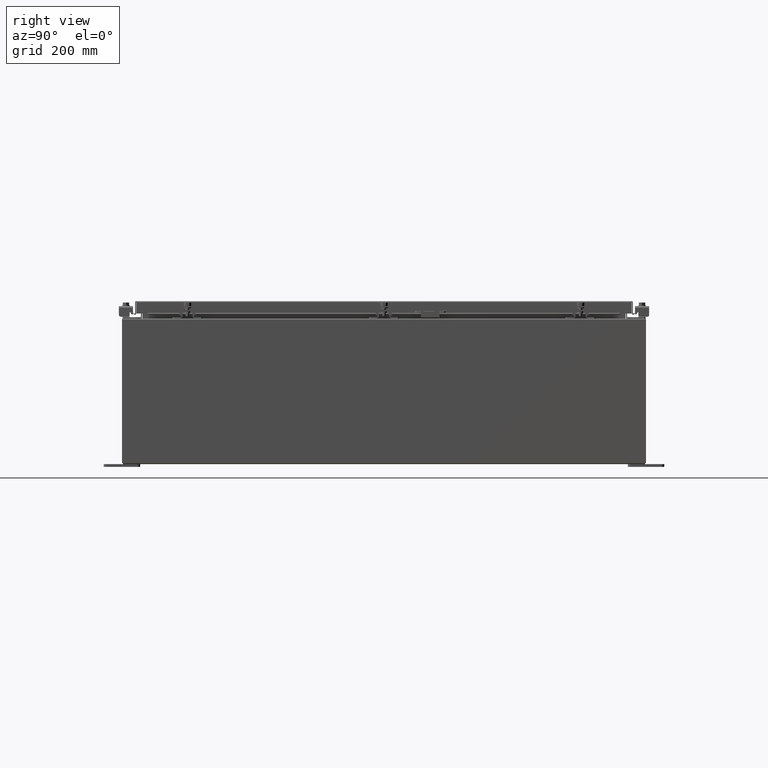
[diagram: clean part render]
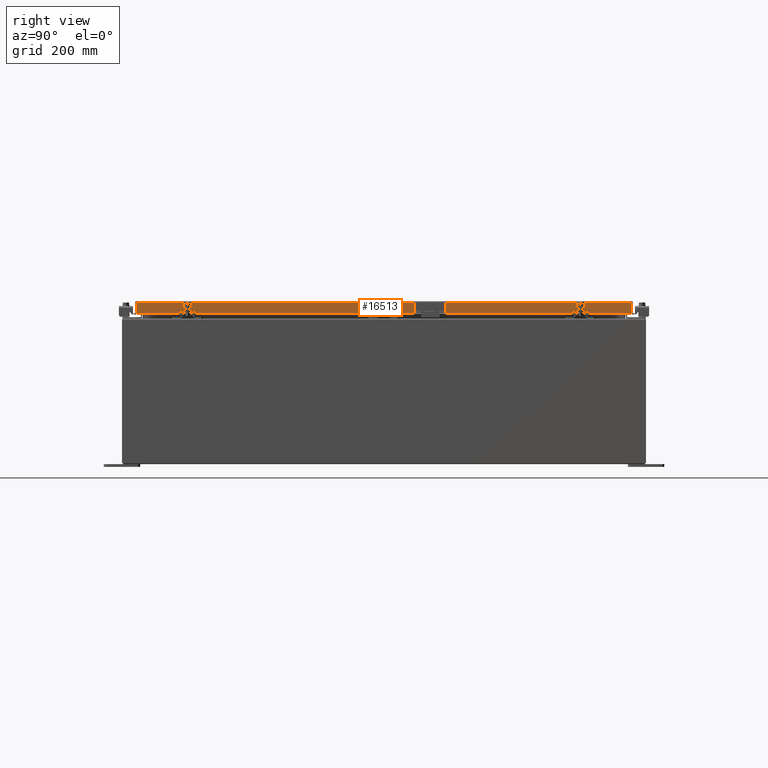
[diagram: same view with one face highlighted and labeled with its STEP entity id]
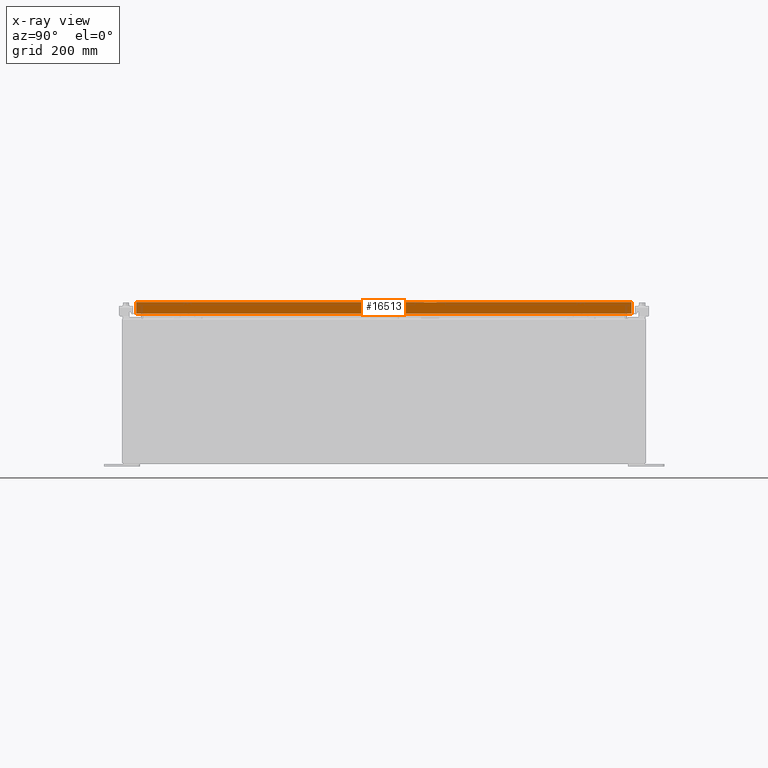
[diagram: x-ray of the same camera — body ghosted, the highlighted face saturated]
A machine part, right view. The second image highlights one B-rep face of the part: STEP entity #16513.
The next image is the same camera in x-ray: the body ghosted, the highlighted face saturated — about 0% of this face is hidden behind the body in this view.
In plain terms, the highlighted planar face has unit normal (1, 0, 0).
Its self-contained STEP definition (entity closure, byte-faithful):
#184 = CARTESIAN_POINT ( 'NONE',  ( 14.07799999999999400, -17.00515786437626900, -0.08770000000000007000 ) ) ;
#338 = DIRECTION ( 'NONE',  ( 0.0000000000000000000, -1.000000000000000000, 0.0000000000000000000 ) ) ;
#683 = DIRECTION ( 'NONE',  ( 0.0000000000000000000, -1.000000000000000000, 0.0000000000000000000 ) ) ;
#1224 = EDGE_CURVE ( 'NONE', #20624, #10920, #30605, .T. ) ;
#1522 = DIRECTION ( 'NONE',  ( 2.818880942772360100E-015, 0.0000000000000000000, -1.000000000000000000 ) ) ;
#2018 = VECTOR ( 'NONE', #338, 39.37007874015748100 ) ;
#2023 = CARTESIAN_POINT ( 'NONE',  ( 14.07799999999999600, -17.00515786437626500, -0.8499999999999996400 ) ) ;
#3238 = ORIENTED_EDGE ( 'NONE', *, *, #20785, .F. ) ;
#5842 = CARTESIAN_POINT ( 'NONE',  ( 14.07799999999999400, 17.00515786437626900, -0.08770000000000007000 ) ) ;
#6041 = EDGE_CURVE ( 'NONE', #23948, #17672, #21598, .T. ) ;
#6255 = VECTOR ( 'NONE', #26525, 39.37007874015748100 ) ;
#7263 = FACE_OUTER_BOUND ( 'NONE', #37409, .T. ) ;
#7291 = LINE ( 'NONE', #16463, #6255 ) ;
#7418 = CARTESIAN_POINT ( 'NONE',  ( 14.07799999999999400, -17.00515786437626900, -0.07469999999999978000 ) ) ;
#7923 = PLANE ( 'NONE',  #12475 ) ;
#8890 = CARTESIAN_POINT ( 'NONE',  ( 14.07799999999999600, -17.09400000000000100, -0.8499999999999996400 ) ) ;
#9810 = VECTOR ( 'NONE', #35630, 39.37007874015748100 ) ;
#10789 = DIRECTION ( 'NONE',  ( -2.818880942772360500E-015, -6.982962677686269100E-015, 1.000000000000000000 ) ) ;
#10920 = VERTEX_POINT ( 'NONE', #2023 ) ;
#12475 = AXIS2_PLACEMENT_3D ( 'NONE', #14817, #21549, #1522 ) ;
#12700 = VECTOR ( 'NONE', #21275, 39.37007874015748100 ) ;
#12834 = VECTOR ( 'NONE', #683, 39.37007874015748100 ) ;
#14701 = CARTESIAN_POINT ( 'NONE',  ( 14.07799999999999400, 17.00515786437627200, 1.586914022634635000E-013 ) ) ;
#14817 = CARTESIAN_POINT ( 'NONE',  ( 14.07799999999999400, 0.0000000000000000000, 3.994501956836084300E-014 ) ) ;
#15157 = VERTEX_POINT ( 'NONE', #184 ) ;
#15584 = ORIENTED_EDGE ( 'NONE', *, *, #41313, .F. ) ;
#16463 = CARTESIAN_POINT ( 'NONE',  ( 14.07799999999998700, 16.25515786437628000, -0.8500000000000016400 ) ) ;
#16513 = ADVANCED_FACE ( 'NONE', ( #7263 ), #7923, .T. ) ;
#16998 = CARTESIAN_POINT ( 'NONE',  ( 14.07799999999999400, 0.0000000000000000000, -0.08770000000000007000 ) ) ;
#17672 = VERTEX_POINT ( 'NONE', #5842 ) ;
#18532 = CARTESIAN_POINT ( 'NONE',  ( 14.07799999999998700, 16.25515786437627600, -0.8500000000000016400 ) ) ;
#18925 = CARTESIAN_POINT ( 'NONE',  ( 14.07799999999998700, -16.25515786437626500, -0.8500000000000016400 ) ) ;
#19949 = VERTEX_POINT ( 'NONE', #18532 ) ;
#20539 = CARTESIAN_POINT ( 'NONE',  ( 14.07799999999999600, -17.09400000000000100, -0.8499999999999996400 ) ) ;
#20624 = VERTEX_POINT ( 'NONE', #18925 ) ;
#20785 = EDGE_CURVE ( 'NONE', #19949, #20624, #7291, .T. ) ;
#21275 = DIRECTION ( 'NONE',  ( -2.818880942772360500E-015, -6.982962677686269100E-015, 1.000000000000000000 ) ) ;
#21423 = EDGE_CURVE ( 'NONE', #17672, #15157, #28690, .T. ) ;
#21549 = DIRECTION ( 'NONE',  ( 1.000000000000000000, 0.0000000000000000000, 2.818880942772360100E-015 ) ) ;
#21598 = LINE ( 'NONE', #14701, #12700 ) ;
#21608 = ORIENTED_EDGE ( 'NONE', *, *, #1224, .F. ) ;
#23376 = ORIENTED_EDGE ( 'NONE', *, *, #6041, .T. ) ;
#23948 = VERTEX_POINT ( 'NONE', #29648 ) ;
#25028 = LINE ( 'NONE', #7418, #42749 ) ;
#26525 = DIRECTION ( 'NONE',  ( 0.0000000000000000000, -1.000000000000000000, 0.0000000000000000000 ) ) ;
#28690 = LINE ( 'NONE', #16998, #2018 ) ;
#29648 = CARTESIAN_POINT ( 'NONE',  ( 14.07799999999999600, 17.00515786437627600, -0.8499999999999996400 ) ) ;
#30605 = LINE ( 'NONE', #20539, #12834 ) ;
#31558 = ORIENTED_EDGE ( 'NONE', *, *, #21423, .T. ) ;
#33615 = ORIENTED_EDGE ( 'NONE', *, *, #37966, .F. ) ;
#35630 = DIRECTION ( 'NONE',  ( 0.0000000000000000000, -1.000000000000000000, 0.0000000000000000000 ) ) ;
#36466 = LINE ( 'NONE', #8890, #9810 ) ;
#37409 = EDGE_LOOP ( 'NONE', ( #33615, #21608, #3238, #15584, #23376, #31558 ) ) ;
#37966 = EDGE_CURVE ( 'NONE', #10920, #15157, #25028, .T. ) ;
#41313 = EDGE_CURVE ( 'NONE', #23948, #19949, #36466, .T. ) ;
#42749 = VECTOR ( 'NONE', #10789, 39.37007874015748100 ) ;